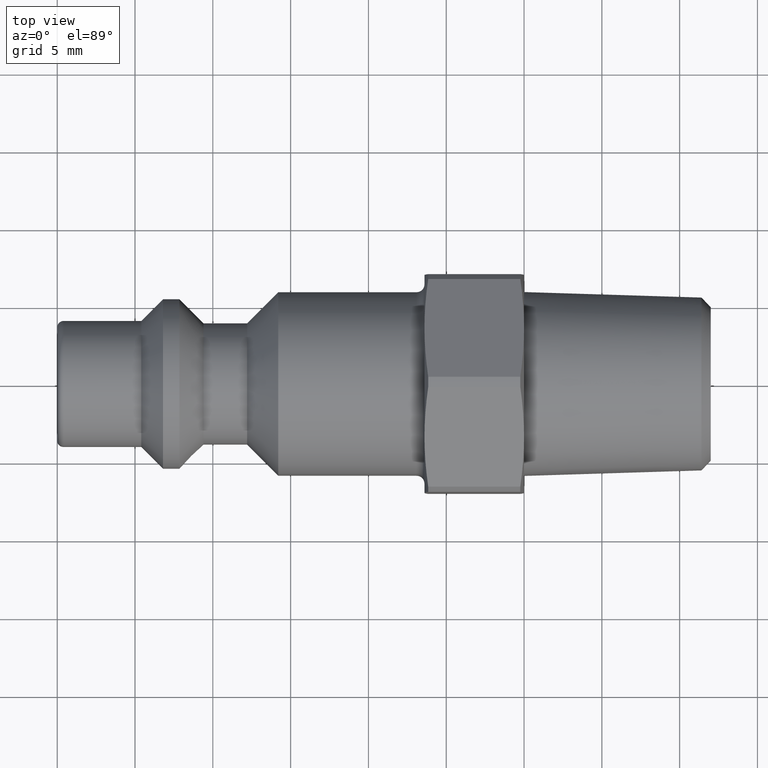
[diagram: clean part render]
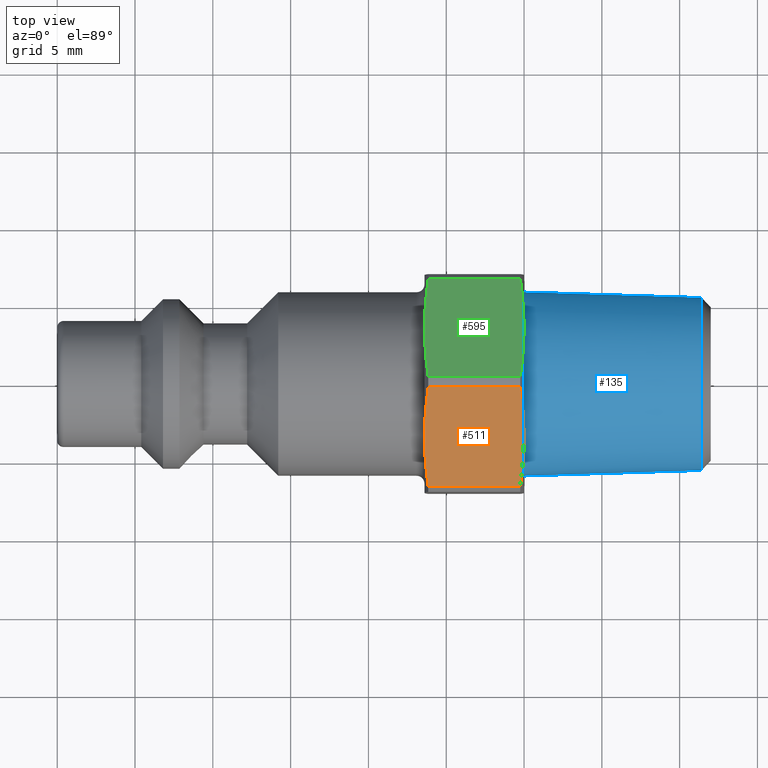
[diagram: same view with three faces highlighted in distinct colors, each labeled with its STEP entity id]
A machine part, top view with three faces highlighted in distinct colors.
Their STEP definitions:

[orange] entity #511 — the highlighted planar face has unit normal (0, 0.5, -0.866).
#428=CARTESIAN_POINT('',(22.578428315368619,-3.5,6.062177826491072));
#429=DIRECTION('',(0.0,0.5,-0.866025403784439));
#430=DIRECTION('',(1.0,0.0,0.0));
#431=AXIS2_PLACEMENT_3D('',#428,#429,#430);
#432=PLANE('',#431);
#433=CARTESIAN_POINT('',(23.84115427318801,-6.671356176779895,4.231194484131019));
#434=VERTEX_POINT('',#433);
#435=CARTESIAN_POINT('',(23.600000000000001,-3.5,6.062177826491073));
#436=VERTEX_POINT('',#435);
#437=CARTESIAN_POINT('',(23.841154273188017,-6.671356176779907,4.231194484131012));
#438=CARTESIAN_POINT('',(23.600000000000001,-4.989898874997304,5.201984309946059));
#439=CARTESIAN_POINT('',(23.600000000000001,-3.499999999999999,6.062177826491073));
#447=(BOUNDED_CURVE()B_SPLINE_CURVE(2,(#437,#438,#439),.UNSPECIFIED.,.F.,.U.)B_SPLINE_CURVE_WITH_KNOTS((3,3),(0.0,0.367169590188577),.UNSPECIFIED.)CURVE()GEOMETRIC_REPRESENTATION_ITEM()RATIONAL_B_SPLINE_CURVE((1.0,1.031642241421739,1.0))REPRESENTATION_ITEM(''));
#448=EDGE_CURVE('',#434,#436,#447,.T.);
#449=ORIENTED_EDGE('',*,*,#448,.F.);
#450=CARTESIAN_POINT('',(29.758845726811984,-6.671356176779896,4.231194484131019));
#451=VERTEX_POINT('',#450);
#452=CARTESIAN_POINT('',(29.75884572681198,-6.671356176779895,4.231194484131019));
#453=DIRECTION('',(-1.0,0.0,0.0));
#454=VECTOR('',#453,5.91769145362397);
#455=LINE('',#452,#454);
#456=EDGE_CURVE('',#451,#434,#455,.T.);
#457=ORIENTED_EDGE('',*,*,#456,.F.);
#458=CARTESIAN_POINT('',(30.0,-3.5,6.062177826491073));
#459=VERTEX_POINT('',#458);
#460=CARTESIAN_POINT('',(30.0,-3.499999999999999,6.062177826491073));
#461=CARTESIAN_POINT('',(30.0,-4.989898874997324,5.201984309946047));
#462=CARTESIAN_POINT('',(29.758845726811984,-6.671356176779942,4.231194484130992));
#470=(BOUNDED_CURVE()B_SPLINE_CURVE(2,(#460,#461,#462),.UNSPECIFIED.,.F.,.U.)B_SPLINE_CURVE_WITH_KNOTS((3,3),(0.36716959018858,0.734339180377161),.UNSPECIFIED.)CURVE()GEOMETRIC_REPRESENTATION_ITEM()RATIONAL_B_SPLINE_CURVE((1.0,1.031642241421797,1.0))REPRESENTATION_ITEM(''));
#471=EDGE_CURVE('',#459,#451,#470,.T.);
#472=ORIENTED_EDGE('',*,*,#471,.F.);
#473=CARTESIAN_POINT('',(29.758845726811984,-0.328643823220104,7.893161168851127));
#474=VERTEX_POINT('',#473);
#475=CARTESIAN_POINT('',(29.758845726811984,-0.328643823220057,7.893161168851154));
#476=CARTESIAN_POINT('',(30.0,-2.010101125002676,6.922371343036097));
#477=CARTESIAN_POINT('',(30.0,-3.499999999999999,6.062177826491073));
#485=(BOUNDED_CURVE()B_SPLINE_CURVE(2,(#475,#476,#477),.UNSPECIFIED.,.F.,.U.)B_SPLINE_CURVE_WITH_KNOTS((3,3),(0.0,0.36716959018858),.UNSPECIFIED.)CURVE()GEOMETRIC_REPRESENTATION_ITEM()RATIONAL_B_SPLINE_CURVE((1.0,1.031642241421797,1.0))REPRESENTATION_ITEM(''));
#486=EDGE_CURVE('',#474,#459,#485,.T.);
#487=ORIENTED_EDGE('',*,*,#486,.F.);
#488=CARTESIAN_POINT('',(23.84115427318801,-0.328643823220105,7.893161168851126));
#489=VERTEX_POINT('',#488);
#490=CARTESIAN_POINT('',(23.84115427318801,-0.328643823220105,7.893161168851126));
#491=DIRECTION('',(1.0,0.0,0.0));
#492=VECTOR('',#491,5.91769145362397);
#493=LINE('',#490,#492);
#494=EDGE_CURVE('',#489,#474,#493,.T.);
#495=ORIENTED_EDGE('',*,*,#494,.F.);
#496=CARTESIAN_POINT('',(23.600000000000001,-3.499999999999999,6.062177826491073));
#497=CARTESIAN_POINT('',(23.600000000000001,-2.010101125002695,6.922371343036088));
#498=CARTESIAN_POINT('',(23.841154273188017,-0.328643823220091,7.893161168851135));
#506=(BOUNDED_CURVE()B_SPLINE_CURVE(2,(#496,#497,#498),.UNSPECIFIED.,.F.,.U.)B_SPLINE_CURVE_WITH_KNOTS((3,3),(0.367169590188577,0.734339180377153),.UNSPECIFIED.)CURVE()GEOMETRIC_REPRESENTATION_ITEM()RATIONAL_B_SPLINE_CURVE((1.0,1.031642241421737,1.0))REPRESENTATION_ITEM(''));
#507=EDGE_CURVE('',#436,#489,#506,.T.);
#508=ORIENTED_EDGE('',*,*,#507,.F.);
#509=EDGE_LOOP('',(#449,#457,#472,#487,#495,#508));
#510=FACE_OUTER_BOUND('',#509,.T.);
#511=ADVANCED_FACE('',(#510),#432,.F.);

[blue] entity #135 — the highlighted conical surface has half-angle 1.78 deg.
#73=CARTESIAN_POINT('',(41.400289521662749,5.554675962514239,6.802516E-016));
#74=VERTEX_POINT('',#73);
#75=CARTESIAN_POINT('',(41.400289521662749,0.0,-3.401258E-016));
#76=DIRECTION('',(1.0,0.0,0.0));
#77=DIRECTION('',(0.0,-1.0,0.0));
#78=AXIS2_PLACEMENT_3D('',#75,#76,#77);
#79=CIRCLE('',#78,5.554675962514239);
#80=EDGE_CURVE('',#74,#74,#79,.T.);
#116=CARTESIAN_POINT('',(36.0,0.0,0.0));
#117=DIRECTION('',(-1.0,0.0,0.0));
#118=DIRECTION('',(0.0,1.0,0.0));
#119=AXIS2_PLACEMENT_3D('',#116,#117,#118);
#120=CONICAL_SURFACE('',#119,5.722500000000004,1.78000000000003);
#121=CARTESIAN_POINT('',(30.0,5.908961155624222,0.0));
#122=VERTEX_POINT('',#121);
#123=CARTESIAN_POINT('',(30.0,0.0,0.0));
#124=DIRECTION('',(1.0,0.0,0.0));
#125=DIRECTION('',(0.0,1.0,0.0));
#126=AXIS2_PLACEMENT_3D('',#123,#124,#125);
#127=CIRCLE('',#126,5.908961155624222);
#128=EDGE_CURVE('',#122,#122,#127,.T.);
#129=ORIENTED_EDGE('',*,*,#128,.T.);
#130=EDGE_LOOP('',(#129));
#131=FACE_OUTER_BOUND('',#130,.T.);
#132=ORIENTED_EDGE('',*,*,#80,.F.);
#133=EDGE_LOOP('',(#132));
#134=FACE_BOUND('',#133,.T.);
#135=ADVANCED_FACE('',(#131,#134),#120,.T.);

[green] entity #595 — the highlighted planar face has unit normal (0, -0.5, -0.866).
#512=CARTESIAN_POINT('',(22.578428315368619,3.500000000000001,6.062177826491071));
#513=DIRECTION('',(0.0,-0.5,-0.866025403784439));
#514=DIRECTION('',(1.0,0.0,0.0));
#515=AXIS2_PLACEMENT_3D('',#512,#513,#514);
#516=PLANE('',#515);
#517=CARTESIAN_POINT('',(23.84115427318801,0.328643823220105,7.893161168851126));
#518=VERTEX_POINT('',#517);
#519=CARTESIAN_POINT('',(23.600000000000001,3.500000000000001,6.062177826491071));
#520=VERTEX_POINT('',#519);
#521=CARTESIAN_POINT('',(23.841154273188017,0.328643823220089,7.893161168851136));
#522=CARTESIAN_POINT('',(23.600000000000001,2.010101125002731,6.922371343036067));
#523=CARTESIAN_POINT('',(23.599999999999998,3.500000000000001,6.062177826491071));
#531=(BOUNDED_CURVE()B_SPLINE_CURVE(2,(#521,#522,#523),.UNSPECIFIED.,.F.,.U.)B_SPLINE_CURVE_WITH_KNOTS((3,3),(0.0,0.367169590188577),.UNSPECIFIED.)CURVE()GEOMETRIC_REPRESENTATION_ITEM()RATIONAL_B_SPLINE_CURVE((1.0,1.031642241421772,1.0))REPRESENTATION_ITEM(''));
#532=EDGE_CURVE('',#518,#520,#531,.T.);
#533=ORIENTED_EDGE('',*,*,#532,.F.);
#534=CARTESIAN_POINT('',(29.758845726811984,0.328643823220104,7.893161168851127));
#535=VERTEX_POINT('',#534);
#536=CARTESIAN_POINT('',(29.75884572681198,0.328643823220105,7.893161168851126));
#537=DIRECTION('',(-1.0,0.0,0.0));
#538=VECTOR('',#537,5.91769145362397);
#539=LINE('',#536,#538);
#540=EDGE_CURVE('',#535,#518,#539,.T.);
#541=ORIENTED_EDGE('',*,*,#540,.F.);
#542=CARTESIAN_POINT('',(30.0,3.500000000000001,6.062177826491071));
#543=VERTEX_POINT('',#542);
#544=CARTESIAN_POINT('',(30.000000000000004,3.500000000000001,6.062177826491071));
#545=CARTESIAN_POINT('',(30.000000000000004,2.010101125002714,6.922371343036076));
#546=CARTESIAN_POINT('',(29.758845726811984,0.328643823220057,7.893161168851155));
#554=(BOUNDED_CURVE()B_SPLINE_CURVE(2,(#544,#545,#546),.UNSPECIFIED.,.F.,.U.)B_SPLINE_CURVE_WITH_KNOTS((3,3),(0.367169590188581,0.734339180377162),.UNSPECIFIED.)CURVE()GEOMETRIC_REPRESENTATION_ITEM()RATIONAL_B_SPLINE_CURVE((1.0,1.031642241421656,1.0))REPRESENTATION_ITEM(''));
#555=EDGE_CURVE('',#543,#535,#554,.T.);
#556=ORIENTED_EDGE('',*,*,#555,.F.);
#557=CARTESIAN_POINT('',(29.758845726811984,6.671356176779898,4.231194484131015));
#558=VERTEX_POINT('',#557);
#559=CARTESIAN_POINT('',(29.758845726811984,6.671356176779945,4.231194484130987));
#560=CARTESIAN_POINT('',(30.000000000000004,4.989898874997288,5.201984309946067));
#561=CARTESIAN_POINT('',(30.000000000000004,3.500000000000001,6.062177826491071));
#569=(BOUNDED_CURVE()B_SPLINE_CURVE(2,(#559,#560,#561),.UNSPECIFIED.,.F.,.U.)B_SPLINE_CURVE_WITH_KNOTS((3,3),(0.0,0.367169590188581),.UNSPECIFIED.)CURVE()GEOMETRIC_REPRESENTATION_ITEM()RATIONAL_B_SPLINE_CURVE((1.0,1.031642241421666,1.0))REPRESENTATION_ITEM(''));
#570=EDGE_CURVE('',#558,#543,#569,.T.);
#571=ORIENTED_EDGE('',*,*,#570,.F.);
#572=CARTESIAN_POINT('',(23.84115427318801,6.671356176779897,4.231194484131015));
#573=VERTEX_POINT('',#572);
#574=CARTESIAN_POINT('',(23.84115427318801,6.671356176779897,4.231194484131015));
#575=DIRECTION('',(1.0,0.0,0.0));
#576=VECTOR('',#575,5.91769145362397);
#577=LINE('',#574,#576);
#578=EDGE_CURVE('',#573,#558,#577,.T.);
#579=ORIENTED_EDGE('',*,*,#578,.F.);
#580=CARTESIAN_POINT('',(23.599999999999998,3.500000000000001,6.062177826491071));
#581=CARTESIAN_POINT('',(23.600000000000001,4.989898874997271,5.201984309946075));
#582=CARTESIAN_POINT('',(23.841154273188017,6.671356176779915,4.231194484131005));
#590=(BOUNDED_CURVE()B_SPLINE_CURVE(2,(#580,#581,#582),.UNSPECIFIED.,.F.,.U.)B_SPLINE_CURVE_WITH_KNOTS((3,3),(0.367169590188577,0.734339180377154),.UNSPECIFIED.)CURVE()GEOMETRIC_REPRESENTATION_ITEM()RATIONAL_B_SPLINE_CURVE((1.0,1.031642241421763,1.0))REPRESENTATION_ITEM(''));
#591=EDGE_CURVE('',#520,#573,#590,.T.);
#592=ORIENTED_EDGE('',*,*,#591,.F.);
#593=EDGE_LOOP('',(#533,#541,#556,#571,#579,#592));
#594=FACE_OUTER_BOUND('',#593,.T.);
#595=ADVANCED_FACE('',(#594),#516,.F.);